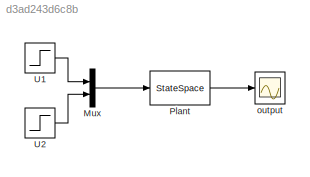
MODEL slx_d3ad243d6c8b
KIND model
CONFIG AbsTol = auto
CONFIG EnableMultiTasking = off
CONFIG FixedStep = auto
CONFIG MaxStep = auto
CONFIG MinStep = auto
CONFIG RelTol = 1e-3
CONFIG SampleTimeConstraint = Unconstrained
CONFIG SolverName = VariableStepAuto
CONFIG StartTime = 0.0
CONFIG StopTime = 10.0
BLOCK [Mux] Mux
  DisplayOption = bar
  Inputs = 2
  Ports = [2, 1]
BLOCK [StateSpace] Plant
  A = A
  B = B
  C = Cd
  D = [0 0;0 0;0 0]
  InitialCondition = 0
  Ports = [1, 1]
BLOCK [Step] U1
  After = 15.5813
  SampleTime = 0
  Time = 0
BLOCK [Step] U2
  After = -410.7783
  SampleTime = 0
  Time = 0
BLOCK [Scope] output
  Floating = off
  NumInputPorts = 1
  Ports = [1]
  ScopeSpecificationString = Simulink.scopes.TimeScopeBlockCfg('CurrentConfiguration', extmgr.ConfigurationSet(extmgr.Configuration('Core','General UI',true),extmgr.Configuration('Core','Source UI',true),extmgr.Configuration('Sources','WiredSimulink',true),extmgr.Configuration('Visuals','Time Domain',true,'SerializedDisplays',{struct('MinYLimReal','-54.85369','MaxYLimReal','493.40031','YLabelReal','','MinYLimMag','0.00000','M...<+1390ch>
LINE Mux:1 -> Plant:1
LINE Plant:1 -> output:1
LINE U1:1 -> Mux:1
LINE U2:1 -> Mux:2
